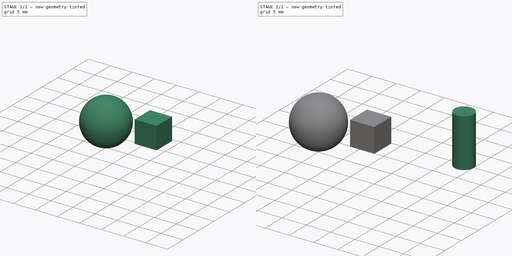
[diagram: build sequence overview — one tinted view per stage of 2, left to right]
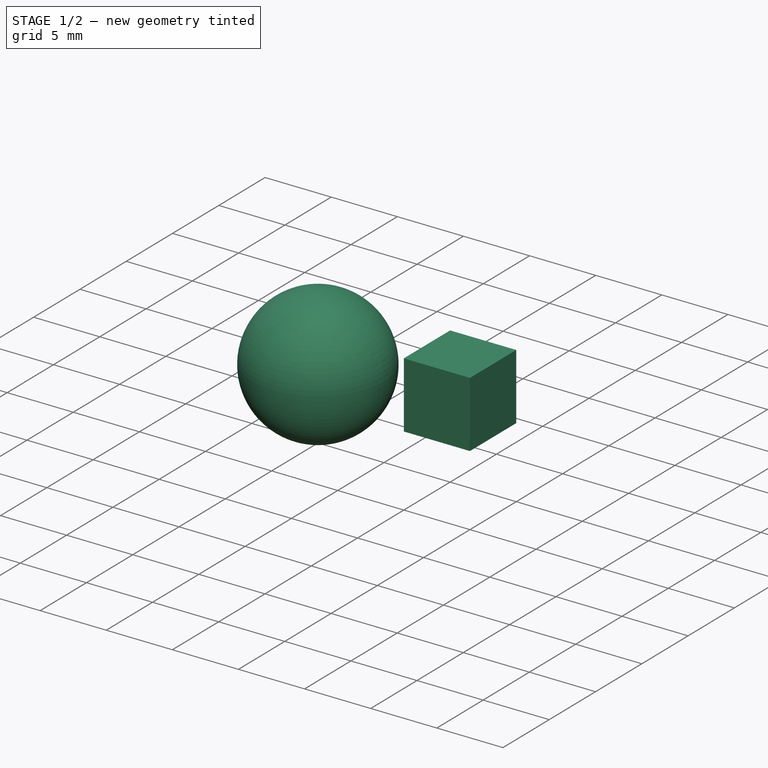
[diagram: stage 1 of 2 — iso view after this stage's code; geometry added in this stage tinted green]
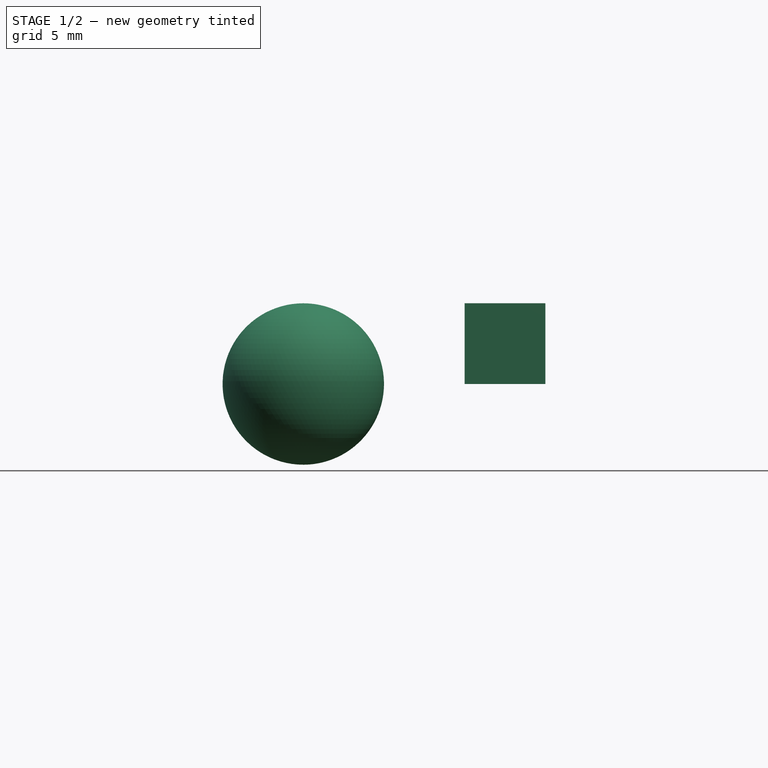
[diagram: stage 1 of 2 — front view after this stage's code; geometry added in this stage tinted green]
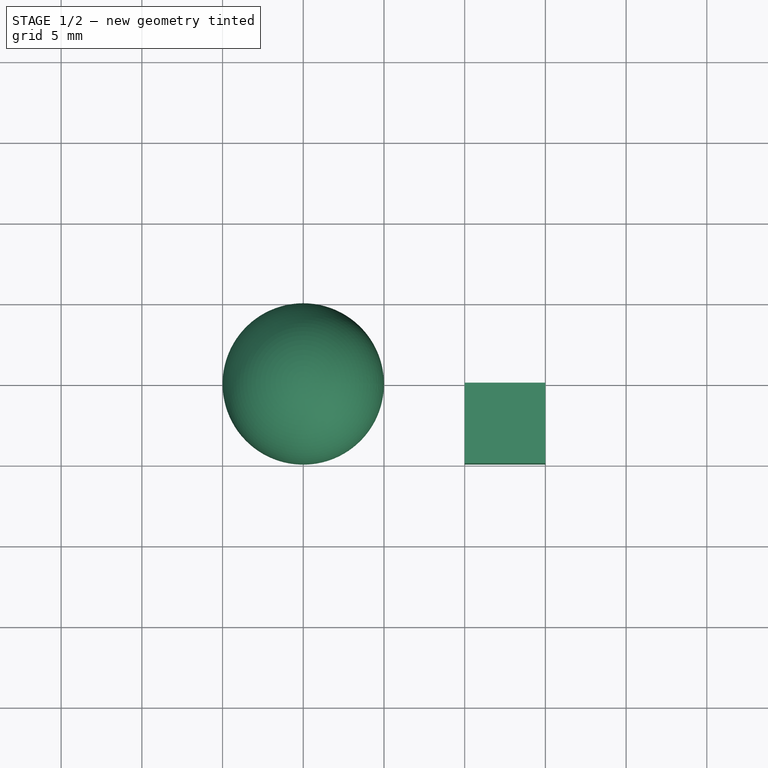
[diagram: stage 1 of 2 — top view after this stage's code; geometry added in this stage tinted green]
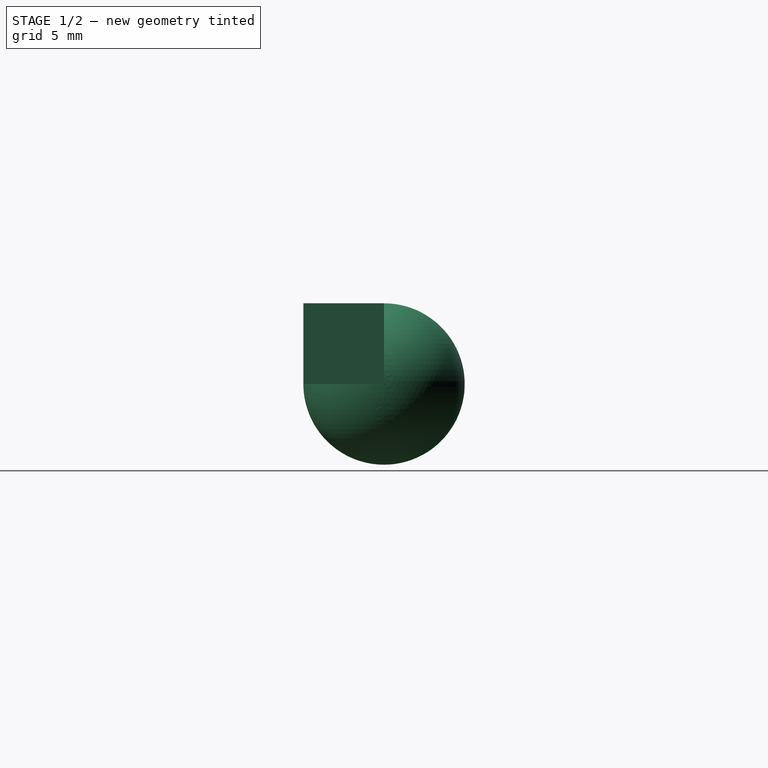
[diagram: stage 1 of 2 — right view after this stage's code; geometry added in this stage tinted green]
FCSTD DOCUMENT  (FreeCAD 0.17R7451 (Git))
Label: spreadsheet
License: All rights reserved
LicenseURL: http://en.wikipedia.org/wiki/All_rights_reserved
objects: Spreadsheet::Sheet×2, Part::Cylinder×1, Part::Sphere×1, Part::Box×1, Sketcher::SketchObject×1
note: 4 computed .brp shape members not serialized (recipe doc carries the construction recipe); baked Part::Feature solids carry a one-line shape summary decoded from their .brp

FEATURE [Part::Sphere] Sphere
  Angle1 = -90
  Angle2 = 90
  Angle3 = 360
  Placement = pos=(-10,5,0) rot=(0,0,1;0rad)
  Radius = 5
FEATURE [Spreadsheet::Sheet] Spreadsheet
  cells = A1=Cube Length; B1==Cube.Length; C1==B1 * 2; A2=Cylinder Radius; B2==Cylinder.Radius; A3=Sphere Radius; B3==Sphere.Radius
FEATURE [Part::Box] Box  label="Cube"
  Height = 5
  Length = 5
  Width = 5
  expr: Width = Spreadsheet001.cubedims
  expr: Length = Spreadsheet001.cubedims
FEATURE [Spreadsheet::Sheet] Spreadsheet001  label="Input"
  cells = A1=Cube dimensions; B1(cubedims)==5mm
FEATURE [Sketcher::SketchObject] Sketch
  expr: Constraints[8] = Spreadsheet001.cubedims
  sketch-geometry (4):
    g0: LineSegment StartX=4.34459 StartY=28.0245 StartZ=0 EndX=9.34459 EndY=28.0245 EndZ=0
    g1: LineSegment StartX=9.34459 StartY=28.0245 StartZ=0 EndX=9.34459 EndY=13.0245 EndZ=0
    g2: LineSegment StartX=9.34459 StartY=13.0245 StartZ=0 EndX=4.34459 EndY=13.0245 EndZ=0
    g3: LineSegment StartX=4.34459 StartY=13.0245 StartZ=0 EndX=4.34459 EndY=28.0245 EndZ=0
  constraints (10):
    c: Coincident(g0,g1)
    c: Coincident(g1,g2)
    c: Coincident(g2,g3)
    c: Coincident(g3,g0)
    c: Horizontal(g0)
    c: Horizontal(g2)
    c: Vertical(g1)
    c: Vertical(g3)
    c: DistanceX(g0,g0) = 5
    c: DistanceY(g3,g3) = 15  'rectangleHeight'
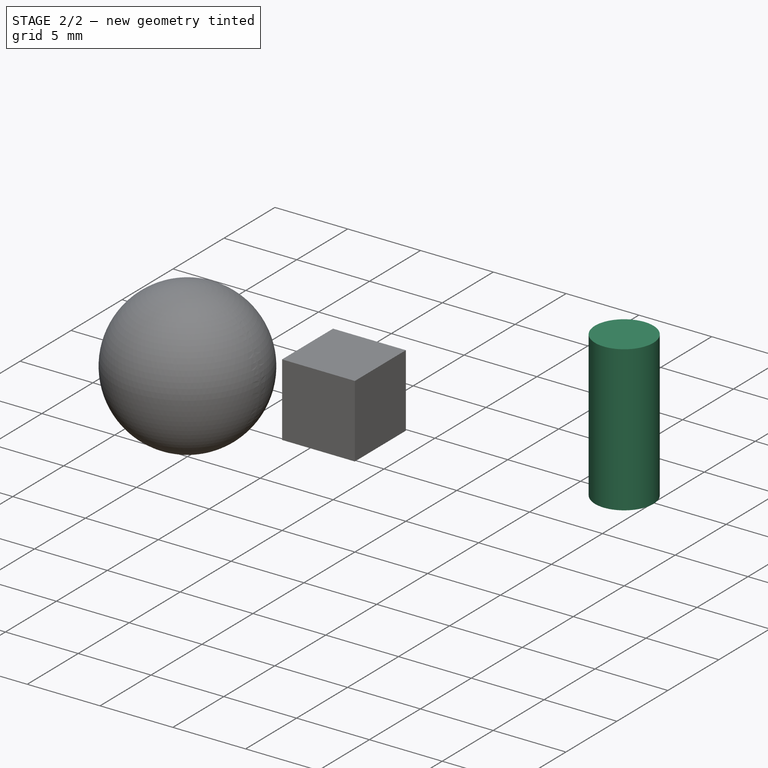
[diagram: stage 2 of 2 — iso view after this stage's code; geometry added in this stage tinted green]
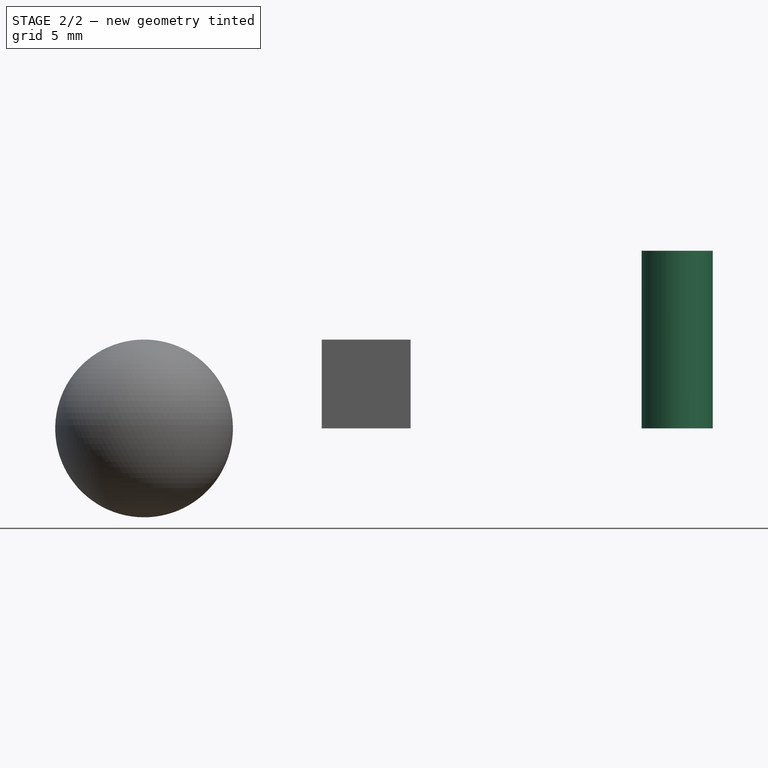
[diagram: stage 2 of 2 — front view after this stage's code; geometry added in this stage tinted green]
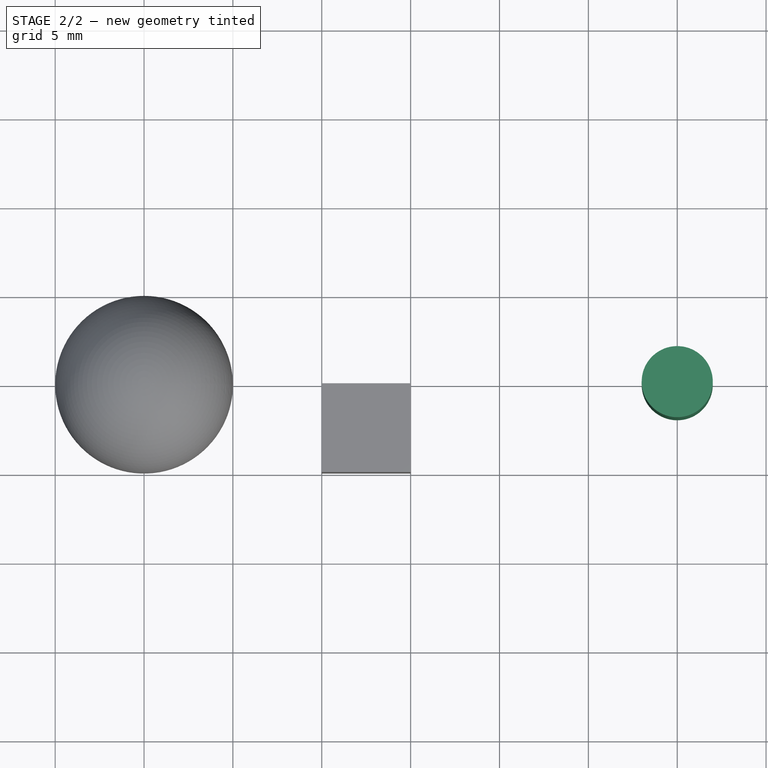
[diagram: stage 2 of 2 — top view after this stage's code; geometry added in this stage tinted green]
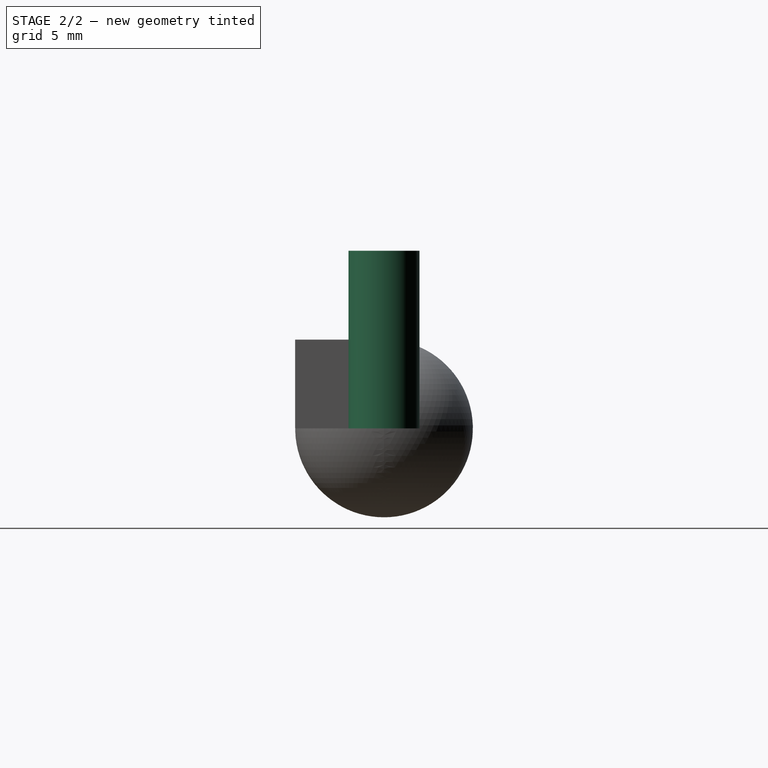
[diagram: stage 2 of 2 — right view after this stage's code; geometry added in this stage tinted green]
FEATURE [Part::Cylinder] Cylinder
  Angle = 360
  Height = 10
  Placement = pos=(20,5,0) rot=(0,0,1;0rad)
  Radius = 2
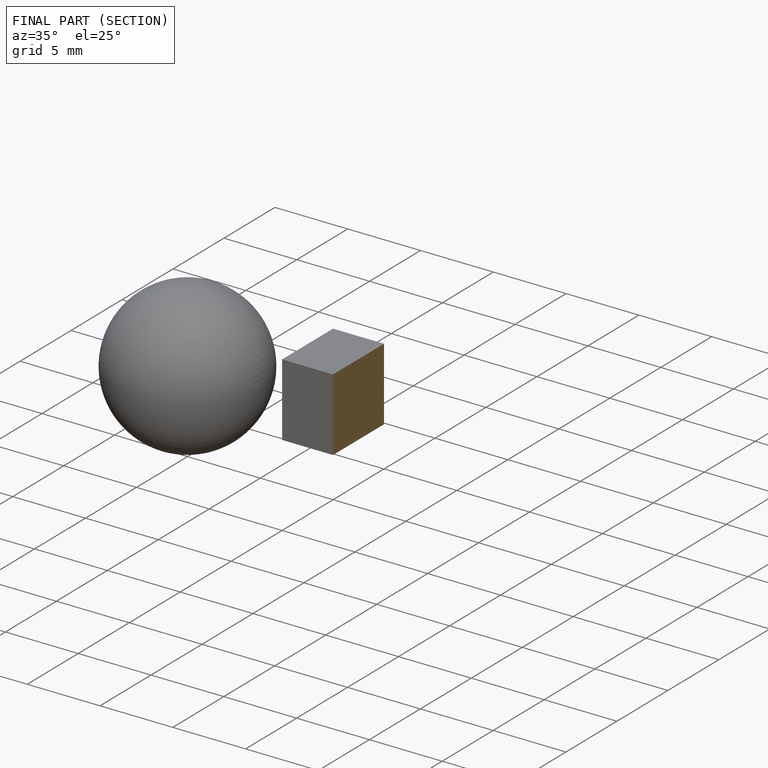
[diagram: finished part — half-section view (interior)]
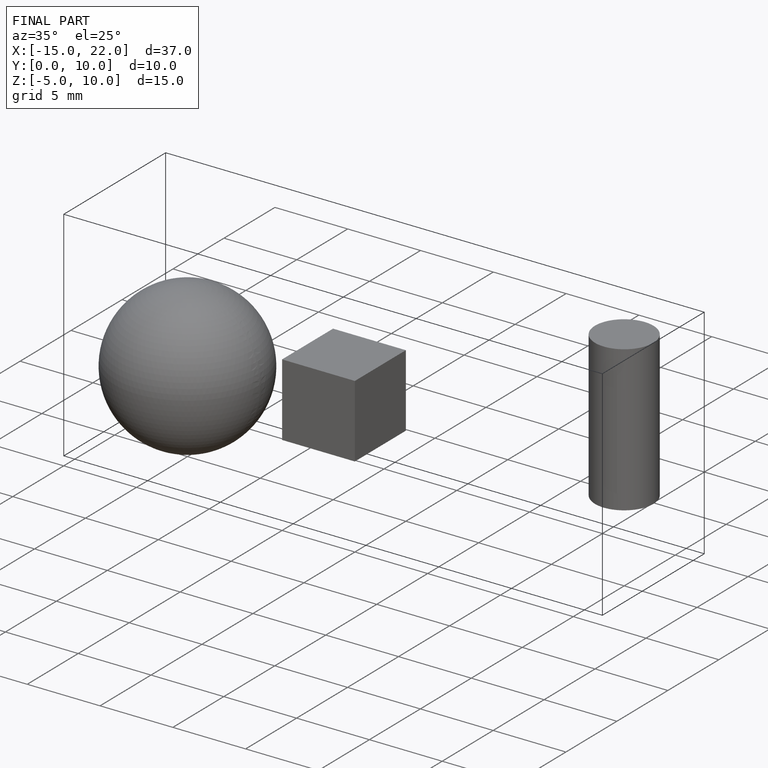
[diagram: finished part — iso view with bounding-box wireframe]
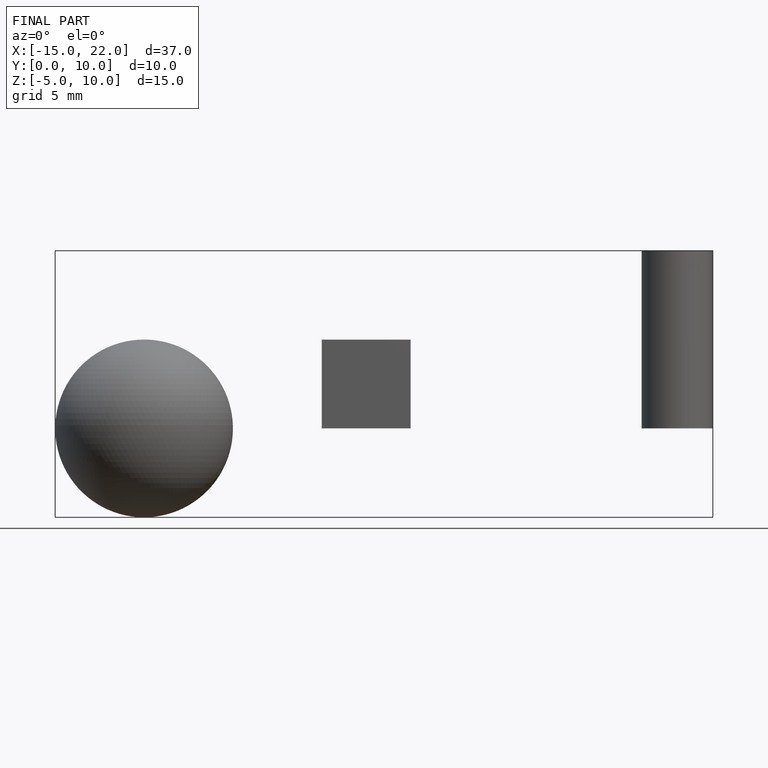
[diagram: finished part — front view with bounding-box wireframe]
